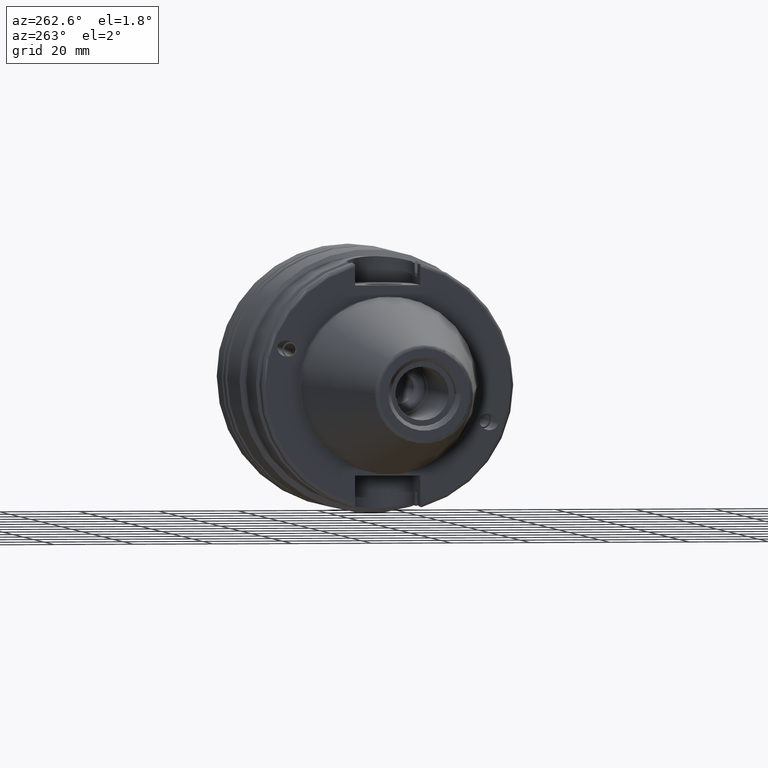
[diagram: clean part render]
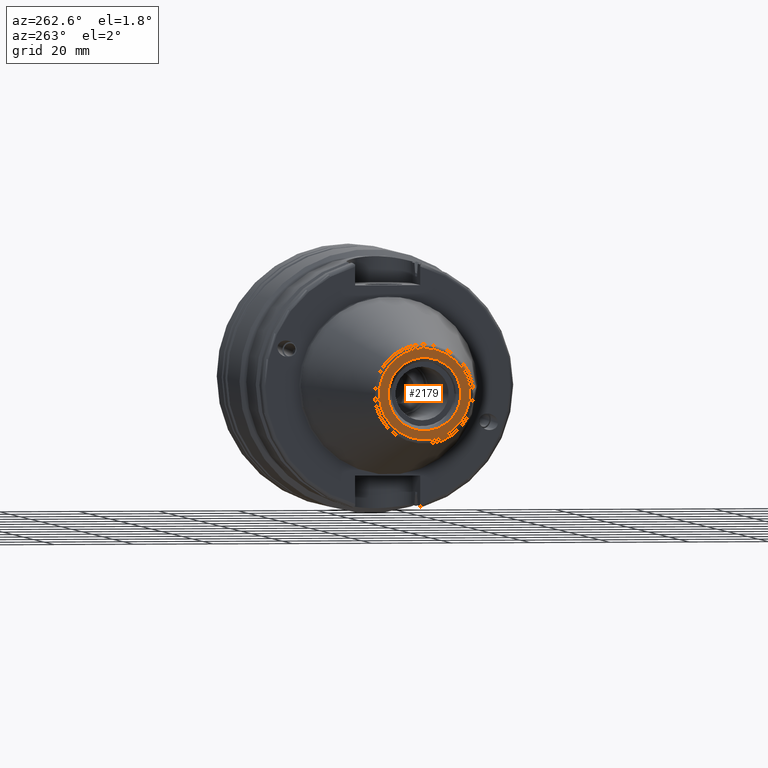
[diagram: same view with one face highlighted and labeled with its STEP entity id]
A machine part, auxiliary view. The second image highlights one B-rep face of the part: STEP entity #2179.
In plain terms, the highlighted planar face has unit normal (-1, 0, 0).
Its self-contained STEP definition (entity closure, byte-faithful):
#78=FACE_BOUND('',#388,.T.);
#102=PLANE('',#2484);
#267=FACE_OUTER_BOUND('',#387,.T.);
#387=EDGE_LOOP('',(#1944,#1945));
#388=EDGE_LOOP('',(#1946,#1947));
#780=CIRCLE('',#2481,11.4071305970304);
#781=CIRCLE('',#2482,11.4071305970304);
#783=CIRCLE('',#2485,9.15);
#784=CIRCLE('',#2486,9.15);
#1030=VERTEX_POINT('',#4202);
#1031=VERTEX_POINT('',#4204);
#1032=VERTEX_POINT('',#4209);
#1033=VERTEX_POINT('',#4210);
#1354=EDGE_CURVE('',#1030,#1031,#780,.T.);
#1355=EDGE_CURVE('',#1031,#1030,#781,.T.);
#1357=EDGE_CURVE('',#1032,#1033,#783,.T.);
#1358=EDGE_CURVE('',#1033,#1032,#784,.T.);
#1944=ORIENTED_EDGE('',*,*,#1355,.F.);
#1945=ORIENTED_EDGE('',*,*,#1354,.F.);
#1946=ORIENTED_EDGE('',*,*,#1357,.T.);
#1947=ORIENTED_EDGE('',*,*,#1358,.T.);
#2179=ADVANCED_FACE('',(#267,#78),#102,.T.);
#2481=AXIS2_PLACEMENT_3D('',#4205,#3132,#3133);
#2482=AXIS2_PLACEMENT_3D('',#4206,#3134,#3135);
#2484=AXIS2_PLACEMENT_3D('',#4208,#3138,#3139);
#2485=AXIS2_PLACEMENT_3D('',#4211,#3140,#3141);
#2486=AXIS2_PLACEMENT_3D('',#4212,#3142,#3143);
#3132=DIRECTION('center_axis',(1.,0.,0.));
#3133=DIRECTION('ref_axis',(0.,-1.,1.83697019872103E-16));
#3134=DIRECTION('center_axis',(1.,0.,0.));
#3135=DIRECTION('ref_axis',(0.,-1.,1.83697019872103E-16));
#3138=DIRECTION('center_axis',(-1.,0.,0.));
#3139=DIRECTION('ref_axis',(0.,0.,1.));
#3140=DIRECTION('center_axis',(1.,0.,0.));
#3141=DIRECTION('ref_axis',(0.,0.,-1.));
#3142=DIRECTION('center_axis',(1.,0.,0.));
#3143=DIRECTION('ref_axis',(0.,0.,-1.));
#4202=CARTESIAN_POINT('',(-68.25,-1.39697059731091E-15,11.4071305970304));
#4204=CARTESIAN_POINT('',(-68.25,11.4071305970304,-6.98485298655456E-16));
#4205=CARTESIAN_POINT('Origin',(-68.25,0.,0.));
#4206=CARTESIAN_POINT('Origin',(-68.25,0.,0.));
#4208=CARTESIAN_POINT('Origin',(-68.25,12.271875,0.));
#4209=CARTESIAN_POINT('',(-68.25,9.15,0.));
#4210=CARTESIAN_POINT('',(-68.25,-9.15,-1.12055182121983E-15));
#4211=CARTESIAN_POINT('Origin',(-68.25,0.,0.));
#4212=CARTESIAN_POINT('Origin',(-68.25,0.,0.));